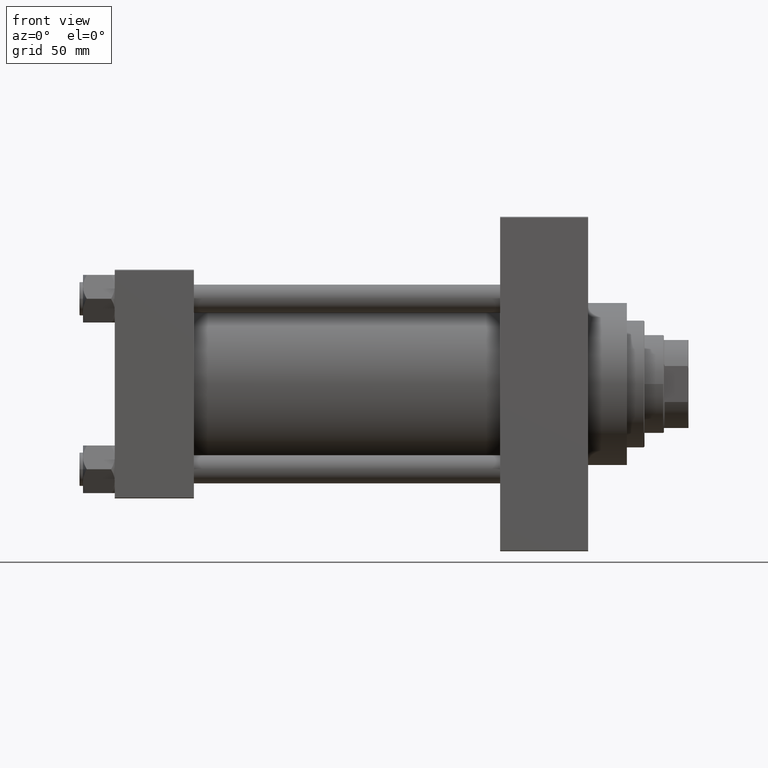
[diagram: clean part render]
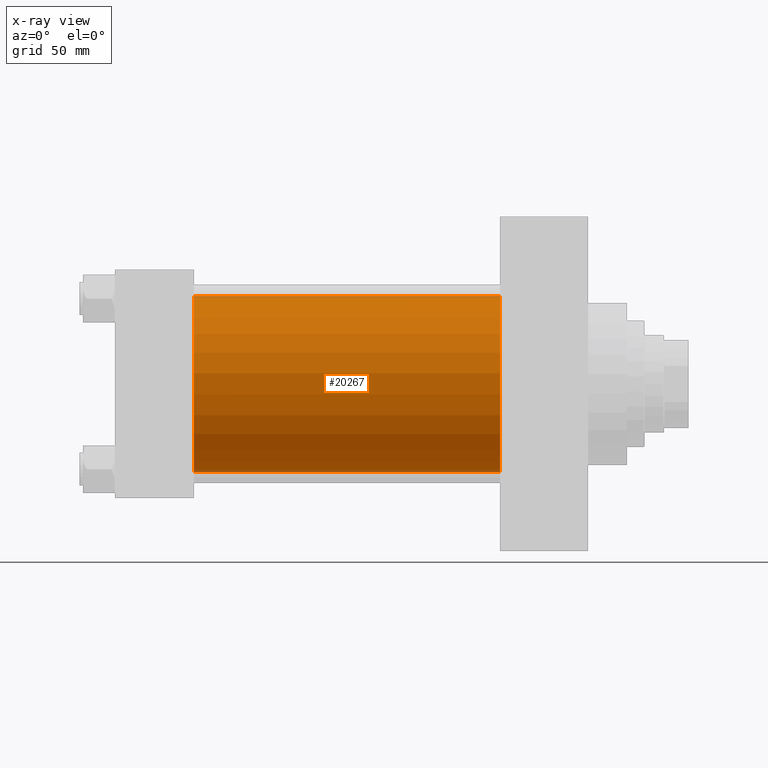
[diagram: x-ray — body ghosted, one internal face saturated and labeled with its STEP entity id]
A machine part, front view, then the same camera in x-ray: the body is ghosted and one INTERNAL B-rep face — a face not visible from any outside direction — is saturated and labeled: STEP entity #20267.
In plain terms, the highlighted cylindrical surface (partial cylindrical patch) has radius 50 mm, axis along (-1, -0, -0).
Its self-contained STEP definition (entity closure, byte-faithful):
#1177 = CARTESIAN_POINT ( 'NONE',  ( 218.9999999999999716, -2.602085213965210642E-15, 0.000000000000000000 ) ) ;
#3420 = CARTESIAN_POINT ( 'NONE',  ( 218.9999999999999716, -2.602085213965210642E-15, 50.00000000000000000 ) ) ;
#3930 = CARTESIAN_POINT ( 'NONE',  ( 218.9999999999999716, 3.521148781771555838E-15, -50.00000000000000000 ) ) ;
#5122 = EDGE_CURVE ( 'NONE', #20595, #41639, #23179, .T. ) ;
#5386 = FACE_OUTER_BOUND ( 'NONE', #11011, .T. ) ;
#5460 = CARTESIAN_POINT ( 'NONE',  ( 218.9999999999999716, 3.521148781771555838E-15, -50.00000000000000000 ) ) ;
#8409 = DIRECTION ( 'NONE',  ( 0.000000000000000000, 0.000000000000000000, -1.000000000000000000 ) ) ;
#9541 = VERTEX_POINT ( 'NONE', #3930 ) ;
#9554 = LINE ( 'NONE', #5460, #35963 ) ;
#11011 = EDGE_LOOP ( 'NONE', ( #39047, #11457, #41827, #20574 ) ) ;
#11457 = ORIENTED_EDGE ( 'NONE', *, *, #23201, .T. ) ;
#12396 = CARTESIAN_POINT ( 'NONE',  ( 218.9999999999999716, -2.602085213965210642E-15, 0.000000000000000000 ) ) ;
#12735 = AXIS2_PLACEMENT_3D ( 'NONE', #12396, #33862, #41843 ) ;
#17836 = EDGE_CURVE ( 'NONE', #20595, #9541, #26851, .T. ) ;
#18312 = CIRCLE ( 'NONE', #43021, 50.00000000000000000 ) ;
#20267 = ADVANCED_FACE ( 'NONE', ( #5386 ), #42335, .F. ) ;
#20278 = DIRECTION ( 'NONE',  ( -1.000000000000000000, -0.000000000000000000, -0.000000000000000000 ) ) ;
#20574 = ORIENTED_EDGE ( 'NONE', *, *, #5122, .F. ) ;
#20595 = VERTEX_POINT ( 'NONE', #3420 ) ;
#21015 = DIRECTION ( 'NONE',  ( 1.000000000000000000, 0.000000000000000000, 0.000000000000000000 ) ) ;
#21224 = CARTESIAN_POINT ( 'NONE',  ( 45.00000000000000000, 3.521148781771555838E-15, -50.00000000000000000 ) ) ;
#22996 = AXIS2_PLACEMENT_3D ( 'NONE', #1177, #41731, #8409 ) ;
#23179 = LINE ( 'NONE', #27279, #45822 ) ;
#23201 = EDGE_CURVE ( 'NONE', #9541, #37145, #9554, .T. ) ;
#26556 = EDGE_CURVE ( 'NONE', #41639, #37145, #18312, .T. ) ;
#26851 = CIRCLE ( 'NONE', #22996, 50.00000000000000000 ) ;
#27279 = CARTESIAN_POINT ( 'NONE',  ( 218.9999999999999716, -2.602085213965210642E-15, 50.00000000000000000 ) ) ;
#31510 = DIRECTION ( 'NONE',  ( -1.000000000000000000, -0.000000000000000000, -0.000000000000000000 ) ) ;
#33862 = DIRECTION ( 'NONE',  ( -1.000000000000000000, -0.000000000000000000, -0.000000000000000000 ) ) ;
#35740 = DIRECTION ( 'NONE',  ( 0.000000000000000000, 0.000000000000000000, -1.000000000000000000 ) ) ;
#35963 = VECTOR ( 'NONE', #31510, 1000.000000000000000 ) ;
#37145 = VERTEX_POINT ( 'NONE', #21224 ) ;
#39047 = ORIENTED_EDGE ( 'NONE', *, *, #17836, .T. ) ;
#39614 = CARTESIAN_POINT ( 'NONE',  ( 45.00000000000000000, -2.602085213965210642E-15, 0.000000000000000000 ) ) ;
#41639 = VERTEX_POINT ( 'NONE', #46194 ) ;
#41731 = DIRECTION ( 'NONE',  ( 1.000000000000000000, 0.000000000000000000, 0.000000000000000000 ) ) ;
#41827 = ORIENTED_EDGE ( 'NONE', *, *, #26556, .F. ) ;
#41843 = DIRECTION ( 'NONE',  ( 0.000000000000000000, 0.000000000000000000, 1.000000000000000000 ) ) ;
#42335 = CYLINDRICAL_SURFACE ( 'NONE', #12735, 50.00000000000000000 ) ;
#43021 = AXIS2_PLACEMENT_3D ( 'NONE', #39614, #21015, #35740 ) ;
#45822 = VECTOR ( 'NONE', #20278, 1000.000000000000000 ) ;
#46194 = CARTESIAN_POINT ( 'NONE',  ( 45.00000000000000000, -2.602085213965210642E-15, 50.00000000000000000 ) ) ;